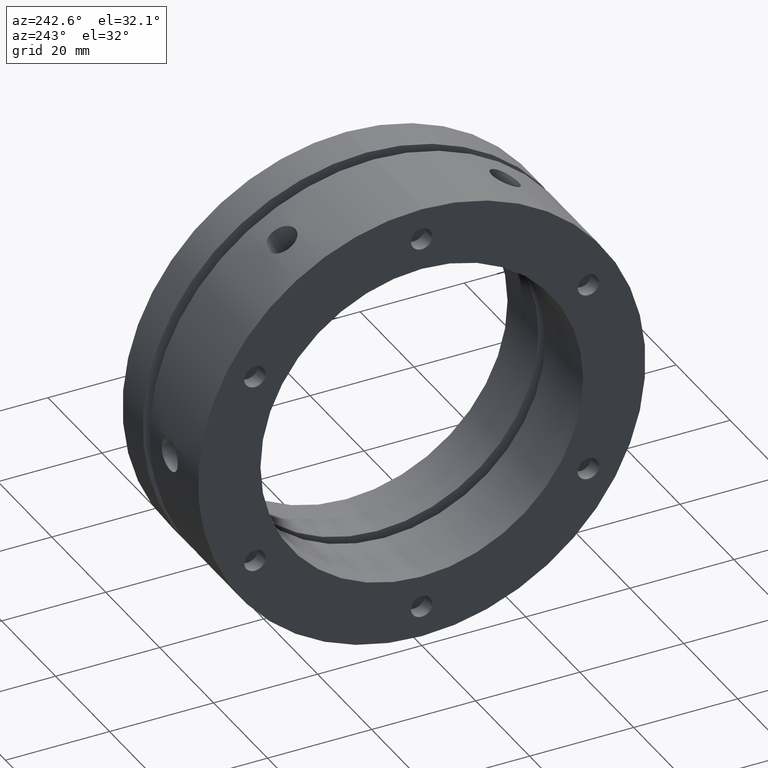
[diagram: clean part render]
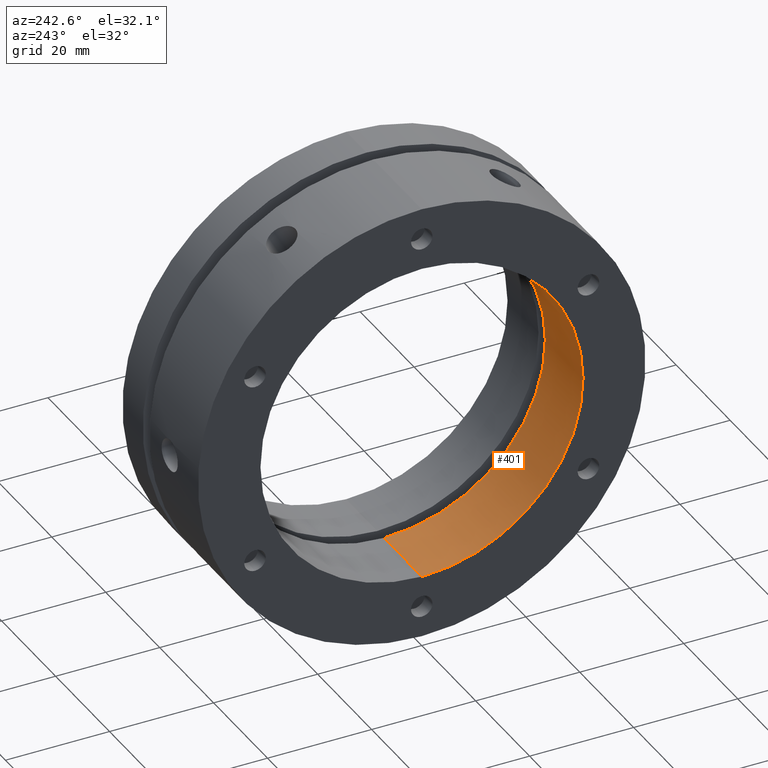
[diagram: same view with one face highlighted and labeled with its STEP entity id]
A machine part, auxiliary view. The second image highlights one B-rep face of the part: STEP entity #401.
In plain terms, the highlighted cylindrical surface (partial cylindrical patch) has radius 31 mm, axis along (1, 0, 0).
Its self-contained STEP definition (entity closure, byte-faithful):
#117 = EDGE_LOOP ( 'NONE', ( #3615, #3616, #3617, #3618 ) ) ;
#401 = ADVANCED_FACE ( 'NONE', ( #1861 ), #1871, .F. ) ;
#465 = EDGE_CURVE ( 'NONE', #4184, #4162, #1952, .T. ) ;
#466 = EDGE_CURVE ( 'NONE', #4184, #4186, #1954, .T. ) ;
#467 = EDGE_CURVE ( 'NONE', #4185, #4186, #1956, .T. ) ;
#468 = EDGE_CURVE ( 'NONE', #4162, #4185, #1957, .T. ) ;
#1082 = DIRECTION ( 'NONE',  ( 0.0000000000000000000, 0.0000000000000000000, -1.000000000000000000 ) ) ;
#1084 = DIRECTION ( 'NONE',  ( 1.000000000000000000, 0.0000000000000000000, 0.0000000000000000000 ) ) ;
#1085 = CARTESIAN_POINT ( 'NONE',  ( 13.99999999999999300, 0.0000000000000000000, 0.0000000000000000000 ) ) ;
#1510 = DIRECTION ( 'NONE',  ( 1.000000000000000000, 0.0000000000000000000, 0.0000000000000000000 ) ) ;
#1511 = CARTESIAN_POINT ( 'NONE',  ( 13.99999999999999300, 3.796405077356795100E-015, 31.00000000000000000 ) ) ;
#1512 = CARTESIAN_POINT ( 'NONE',  ( -8.673617379884035500E-015, 0.0000000000000000000, 0.0000000000000000000 ) ) ;
#1513 = DIRECTION ( 'NONE',  ( 1.000000000000000000, 0.0000000000000000000, 0.0000000000000000000 ) ) ;
#1514 = DIRECTION ( 'NONE',  ( 0.0000000000000000000, 0.0000000000000000000, -1.000000000000000000 ) ) ;
#1515 = DIRECTION ( 'NONE',  ( 1.000000000000000000, 0.0000000000000000000, 0.0000000000000000000 ) ) ;
#1516 = CARTESIAN_POINT ( 'NONE',  ( 13.99999999999999300, 0.0000000000000000000, -31.00000000000000000 ) ) ;
#1517 = CARTESIAN_POINT ( 'NONE',  ( 14.00000000000001200, 0.0000000000000000000, 0.0000000000000000000 ) ) ;
#1518 = DIRECTION ( 'NONE',  ( -1.000000000000000000, -0.0000000000000000000, -0.0000000000000000000 ) ) ;
#1519 = DIRECTION ( 'NONE',  ( 0.0000000000000000000, 0.0000000000000000000, -1.000000000000000000 ) ) ;
#1861 = FACE_OUTER_BOUND ( 'NONE', #117, .T. ) ;
#1871 = CYLINDRICAL_SURFACE ( 'NONE', #4666, 31.00000000000000000 ) ;
#1952 = CIRCLE ( 'NONE', #4681, 31.00000000000000000 ) ;
#1954 = LINE ( 'NONE', #1511, #1958 ) ;
#1956 = CIRCLE ( 'NONE', #4682, 31.00000000000000000 ) ;
#1957 = LINE ( 'NONE', #1516, #1961 ) ;
#1958 = VECTOR ( 'NONE', #1510, 1000.000000000000000 ) ;
#1961 = VECTOR ( 'NONE', #1515, 1000.000000000000000 ) ;
#3050 = CARTESIAN_POINT ( 'NONE',  ( -8.673617379884035500E-015, 0.0000000000000000000, -31.00000000000000000 ) ) ;
#3072 = CARTESIAN_POINT ( 'NONE',  ( -8.673617379884035500E-015, 3.796405077356795100E-015, 31.00000000000000000 ) ) ;
#3073 = CARTESIAN_POINT ( 'NONE',  ( 14.00000000000001200, 0.0000000000000000000, -31.00000000000000000 ) ) ;
#3074 = CARTESIAN_POINT ( 'NONE',  ( 14.00000000000001200, 3.796405077356795100E-015, 31.00000000000000000 ) ) ;
#3615 = ORIENTED_EDGE ( 'NONE', *, *, #465, .F. ) ;
#3616 = ORIENTED_EDGE ( 'NONE', *, *, #466, .T. ) ;
#3617 = ORIENTED_EDGE ( 'NONE', *, *, #467, .F. ) ;
#3618 = ORIENTED_EDGE ( 'NONE', *, *, #468, .F. ) ;
#4162 = VERTEX_POINT ( 'NONE', #3050 ) ;
#4184 = VERTEX_POINT ( 'NONE', #3072 ) ;
#4185 = VERTEX_POINT ( 'NONE', #3073 ) ;
#4186 = VERTEX_POINT ( 'NONE', #3074 ) ;
#4666 = AXIS2_PLACEMENT_3D ( 'NONE', #1085, #1084, #1082 ) ;
#4681 = AXIS2_PLACEMENT_3D ( 'NONE', #1512, #1513, #1514 ) ;
#4682 = AXIS2_PLACEMENT_3D ( 'NONE', #1517, #1518, #1519 ) ;